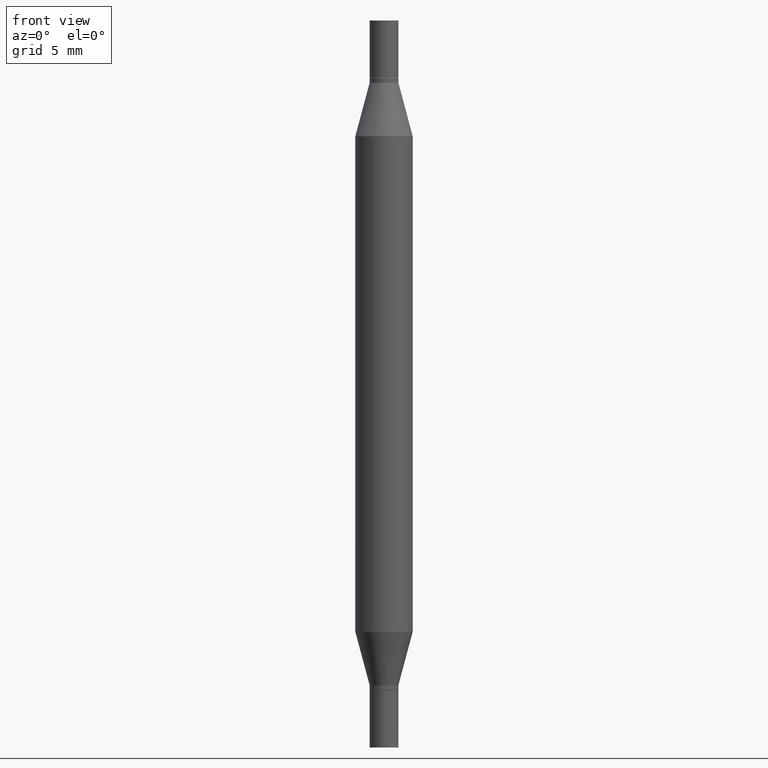
[diagram: clean part render]
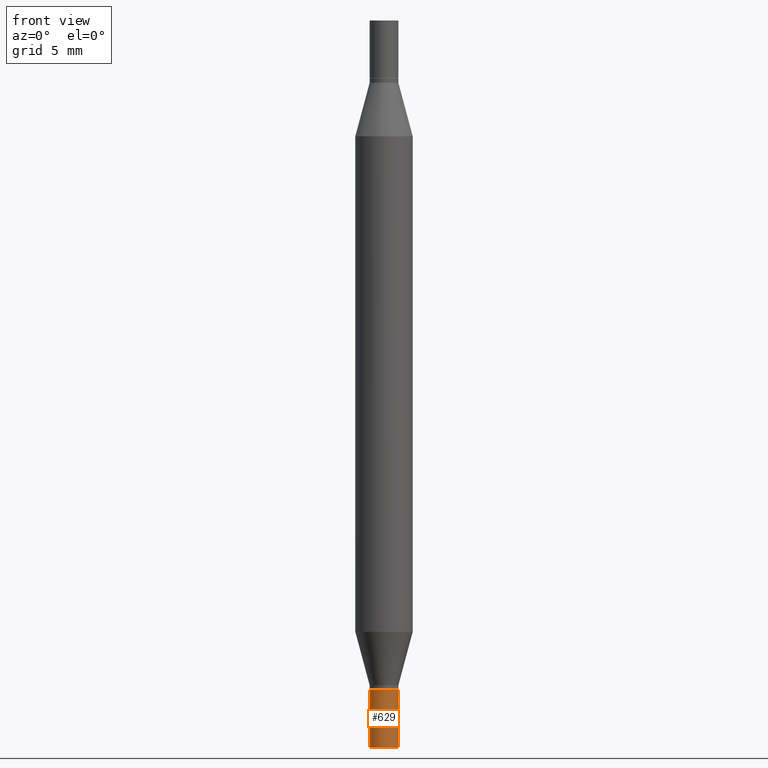
[diagram: same view with one face highlighted and labeled with its STEP entity id]
A machine part, front view. The second image highlights one B-rep face of the part: STEP entity #629.
In plain terms, the highlighted cylindrical surface (edge-blend (fillet) strip) has radius 0.7506 mm, axis along (-0, 0, 1).
Its self-contained STEP definition (entity closure, byte-faithful):
#14 = CIRCLE ( 'NONE', #157, 0.02954999999999999988 ) ;
#68 = CARTESIAN_POINT ( 'NONE',  ( 0.02954999999999999988, -5.429951778168858482E-15, -1.496099999999999985 ) ) ;
#81 = CARTESIAN_POINT ( 'NONE',  ( -0.02954999999999999988, 2.099653784171096041E-16, -1.453545319170324550E-30 ) ) ;
#110 = EDGE_CURVE ( 'NONE', #895, #412, #687, .T. ) ;
#126 = CARTESIAN_POINT ( 'NONE',  ( 3.658665880933582389E-29, -5.223605231043229660E-15, -1.496099999999999985 ) ) ;
#127 = VERTEX_POINT ( 'NONE', #130 ) ;
#130 = CARTESIAN_POINT ( 'NONE',  ( -0.02954999999999999988, -4.807467879567433237E-15, -1.377999999999999892 ) ) ;
#157 = AXIS2_PLACEMENT_3D ( 'NONE', #719, #890, #345 ) ;
#180 = EDGE_CURVE ( 'NONE', #127, #442, #14, .T. ) ;
#195 = DIRECTION ( 'NONE',  ( -2.445468806185136597E-29, 3.491481338843145583E-15, 1.000000000000000000 ) ) ;
#202 = EDGE_LOOP ( 'NONE', ( #295, #784, #789, #285 ) ) ;
#260 = AXIS2_PLACEMENT_3D ( 'NONE', #126, #280, #366 ) ;
#268 = VECTOR ( 'NONE', #704, 39.37007874015748143 ) ;
#280 = DIRECTION ( 'NONE',  ( -2.445468806185136597E-29, 3.491481338843145583E-15, 1.000000000000000000 ) ) ;
#285 = ORIENTED_EDGE ( 'NONE', *, *, #180, .F. ) ;
#295 = ORIENTED_EDGE ( 'NONE', *, *, #370, .F. ) ;
#313 = DIRECTION ( 'NONE',  ( -2.445468806185136877E-29, 3.491481338843145188E-15, 1.000000000000000000 ) ) ;
#330 = EDGE_CURVE ( 'NONE', #412, #442, #926, .T. ) ;
#345 = DIRECTION ( 'NONE',  ( 1.000000000000000000, -6.982962677686261977E-15, 0.000000000000000000 ) ) ;
#366 = DIRECTION ( 'NONE',  ( 1.000000000000000000, -6.982962677686261977E-15, 0.000000000000000000 ) ) ;
#370 = EDGE_CURVE ( 'NONE', #895, #127, #761, .T. ) ;
#371 = FACE_OUTER_BOUND ( 'NONE', #202, .T. ) ;
#412 = VERTEX_POINT ( 'NONE', #68 ) ;
#442 = VERTEX_POINT ( 'NONE', #940 ) ;
#458 = CARTESIAN_POINT ( 'NONE',  ( 0.000000000000000000, 0.000000000000000000, 0.000000000000000000 ) ) ;
#463 = CARTESIAN_POINT ( 'NONE',  ( 0.02954999999999999988, -2.063465471256291914E-16, 1.440910237247699070E-30 ) ) ;
#526 = DIRECTION ( 'NONE',  ( 1.000000000000000000, -6.982962677686266711E-15, 4.876176775795935793E-29 ) ) ;
#629 = ADVANCED_FACE ( 'NONE', ( #371 ), #876, .T. ) ;
#687 = CIRCLE ( 'NONE', #260, 0.02954999999999999988 ) ;
#704 = DIRECTION ( 'NONE',  ( -2.445468806185136877E-29, 3.491481338843145188E-15, 1.000000000000000000 ) ) ;
#719 = CARTESIAN_POINT ( 'NONE',  ( 3.369856014923117948E-29, -4.811261284925853951E-15, -1.377999999999999892 ) ) ;
#761 = LINE ( 'NONE', #81, #268 ) ;
#784 = ORIENTED_EDGE ( 'NONE', *, *, #110, .T. ) ;
#789 = ORIENTED_EDGE ( 'NONE', *, *, #330, .T. ) ;
#839 = VECTOR ( 'NONE', #313, 39.37007874015748143 ) ;
#870 = CARTESIAN_POINT ( 'NONE',  ( -0.02954999999999999988, -4.807467879567433237E-15, -1.496099999999999985 ) ) ;
#876 = CYLINDRICAL_SURFACE ( 'NONE', #889, 0.02954999999999999988 ) ;
#889 = AXIS2_PLACEMENT_3D ( 'NONE', #458, #195, #526 ) ;
#890 = DIRECTION ( 'NONE',  ( -2.445468806185136597E-29, 3.491481338843145583E-15, 1.000000000000000000 ) ) ;
#895 = VERTEX_POINT ( 'NONE', #870 ) ;
#926 = LINE ( 'NONE', #463, #839 ) ;
#940 = CARTESIAN_POINT ( 'NONE',  ( 0.02954999999999999988, -5.017607832051483561E-15, -1.377999999999999892 ) ) ;